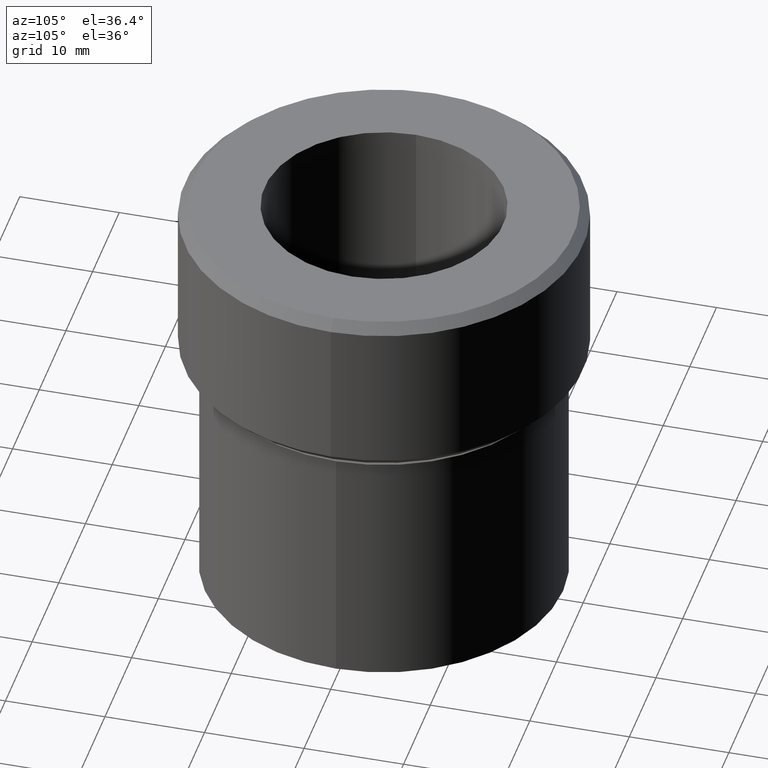
[diagram: clean part render]
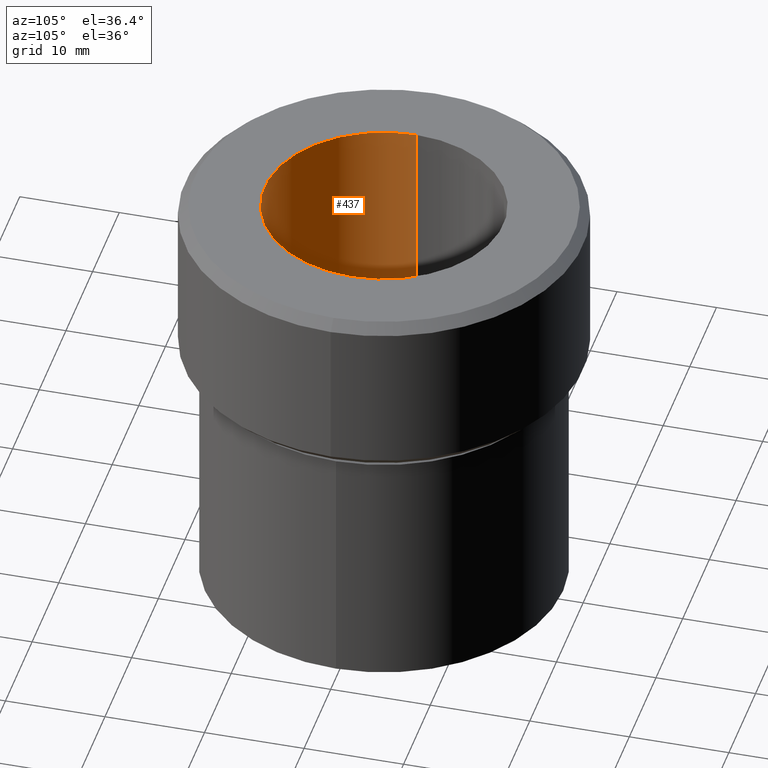
[diagram: same view with one face highlighted and labeled with its STEP entity id]
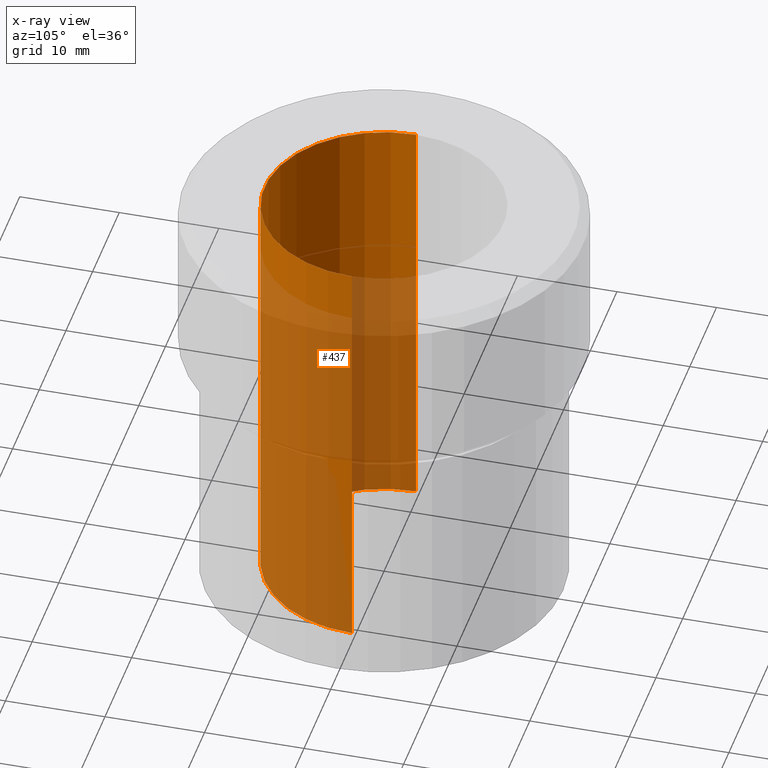
[diagram: x-ray of the same camera — body ghosted, the highlighted face saturated]
A machine part, auxiliary view. The second image highlights one B-rep face of the part: STEP entity #437.
The next image is the same camera in x-ray: the body ghosted, the highlighted face saturated — about 63% of this face is hidden behind the body in this view.
In plain terms, the highlighted cylindrical surface (partial cylindrical patch) has radius 12 mm, axis along (-0, -0, 1).
Its self-contained STEP definition (entity closure, byte-faithful):
#6 = CARTESIAN_POINT ( 'NONE',  ( -12.00000000000000178, 1.469576158976824144E-15, -54.99999999999999289 ) ) ;
#10 = DIRECTION ( 'NONE',  ( -0.000000000000000000, -0.000000000000000000, 1.000000000000000000 ) ) ;
#20 = AXIS2_PLACEMENT_3D ( 'NONE', #148, #471, #431 ) ;
#27 = EDGE_LOOP ( 'NONE', ( #300, #136, #283, #263 ) ) ;
#30 = VECTOR ( 'NONE', #279, 1000.000000000000000 ) ;
#37 = CARTESIAN_POINT ( 'NONE',  ( 12.00000000000000178, 0.000000000000000000, -43.00000000000000000 ) ) ;
#53 = VERTEX_POINT ( 'NONE', #61 ) ;
#61 = CARTESIAN_POINT ( 'NONE',  ( 12.00000000000000178, 0.000000000000000000, 0.000000000000000000 ) ) ;
#78 = DIRECTION ( 'NONE',  ( 1.000000000000000000, 0.000000000000000000, 0.000000000000000000 ) ) ;
#97 = VERTEX_POINT ( 'NONE', #311 ) ;
#122 = DIRECTION ( 'NONE',  ( -0.000000000000000000, -0.000000000000000000, 1.000000000000000000 ) ) ;
#124 = LINE ( 'NONE', #529, #30 ) ;
#136 = ORIENTED_EDGE ( 'NONE', *, *, #377, .T. ) ;
#148 = CARTESIAN_POINT ( 'NONE',  ( 0.000000000000000000, 0.000000000000000000, -43.00000000000000000 ) ) ;
#151 = AXIS2_PLACEMENT_3D ( 'NONE', #412, #328, #378 ) ;
#154 = EDGE_CURVE ( 'NONE', #178, #293, #268, .T. ) ;
#178 = VERTEX_POINT ( 'NONE', #520 ) ;
#206 = EDGE_CURVE ( 'NONE', #293, #53, #124, .T. ) ;
#234 = VECTOR ( 'NONE', #10, 1000.000000000000000 ) ;
#243 = CYLINDRICAL_SURFACE ( 'NONE', #151, 12.00000000000000178 ) ;
#256 = LINE ( 'NONE', #6, #234 ) ;
#263 = ORIENTED_EDGE ( 'NONE', *, *, #206, .F. ) ;
#268 = CIRCLE ( 'NONE', #20, 12.00000000000000178 ) ;
#273 = EDGE_CURVE ( 'NONE', #97, #53, #296, .T. ) ;
#279 = DIRECTION ( 'NONE',  ( -0.000000000000000000, -0.000000000000000000, 1.000000000000000000 ) ) ;
#283 = ORIENTED_EDGE ( 'NONE', *, *, #273, .T. ) ;
#290 = FACE_OUTER_BOUND ( 'NONE', #27, .T. ) ;
#293 = VERTEX_POINT ( 'NONE', #37 ) ;
#296 = CIRCLE ( 'NONE', #326, 12.00000000000000178 ) ;
#300 = ORIENTED_EDGE ( 'NONE', *, *, #154, .F. ) ;
#311 = CARTESIAN_POINT ( 'NONE',  ( -12.00000000000000178, 1.469576158976824144E-15, 0.000000000000000000 ) ) ;
#326 = AXIS2_PLACEMENT_3D ( 'NONE', #478, #122, #78 ) ;
#328 = DIRECTION ( 'NONE',  ( -0.000000000000000000, -0.000000000000000000, 1.000000000000000000 ) ) ;
#377 = EDGE_CURVE ( 'NONE', #178, #97, #256, .T. ) ;
#378 = DIRECTION ( 'NONE',  ( 1.000000000000000000, 0.000000000000000000, 0.000000000000000000 ) ) ;
#412 = CARTESIAN_POINT ( 'NONE',  ( 0.000000000000000000, 0.000000000000000000, -54.99999999999999289 ) ) ;
#431 = DIRECTION ( 'NONE',  ( -1.000000000000000000, 0.000000000000000000, 0.000000000000000000 ) ) ;
#437 = ADVANCED_FACE ( 'NONE', ( #290 ), #243, .F. ) ;
#471 = DIRECTION ( 'NONE',  ( -0.000000000000000000, -0.000000000000000000, 1.000000000000000000 ) ) ;
#478 = CARTESIAN_POINT ( 'NONE',  ( 0.000000000000000000, 0.000000000000000000, 0.000000000000000000 ) ) ;
#520 = CARTESIAN_POINT ( 'NONE',  ( -12.00000000000000178, 1.469576158976824144E-15, -43.00000000000000000 ) ) ;
#529 = CARTESIAN_POINT ( 'NONE',  ( 12.00000000000000178, 0.000000000000000000, -54.99999999999999289 ) ) ;